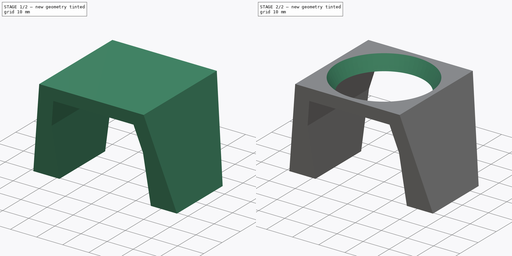
[diagram: build sequence overview — one tinted view per stage of 2, left to right]
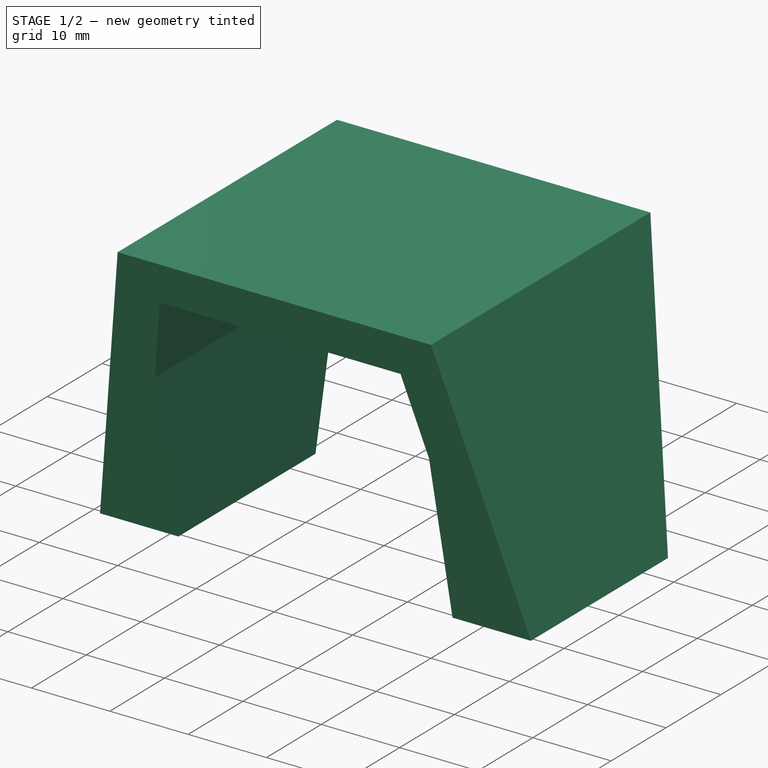
[diagram: stage 1 of 2 — iso view after this stage's code; geometry added in this stage tinted green]
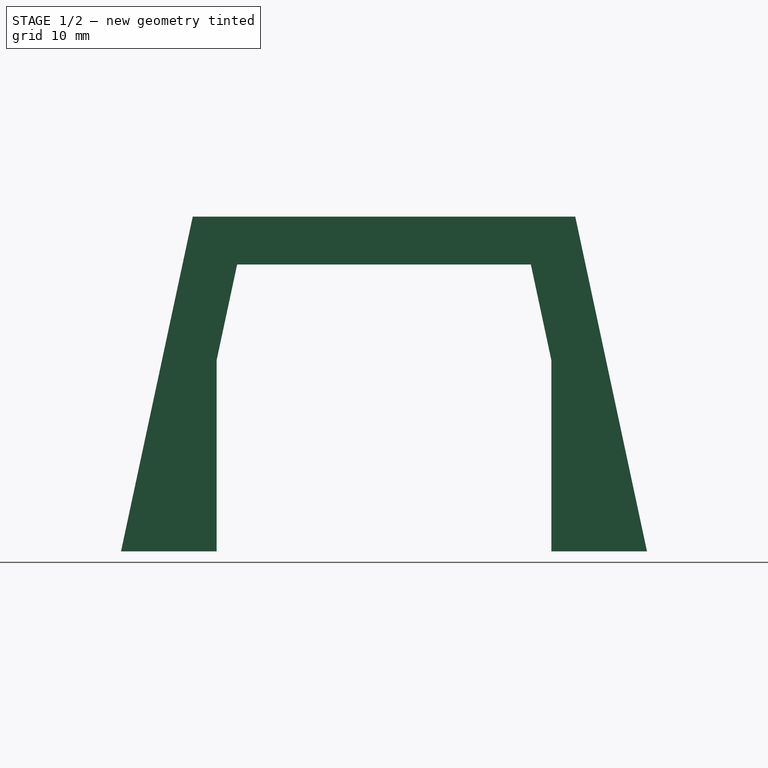
[diagram: stage 1 of 2 — front view after this stage's code; geometry added in this stage tinted green]
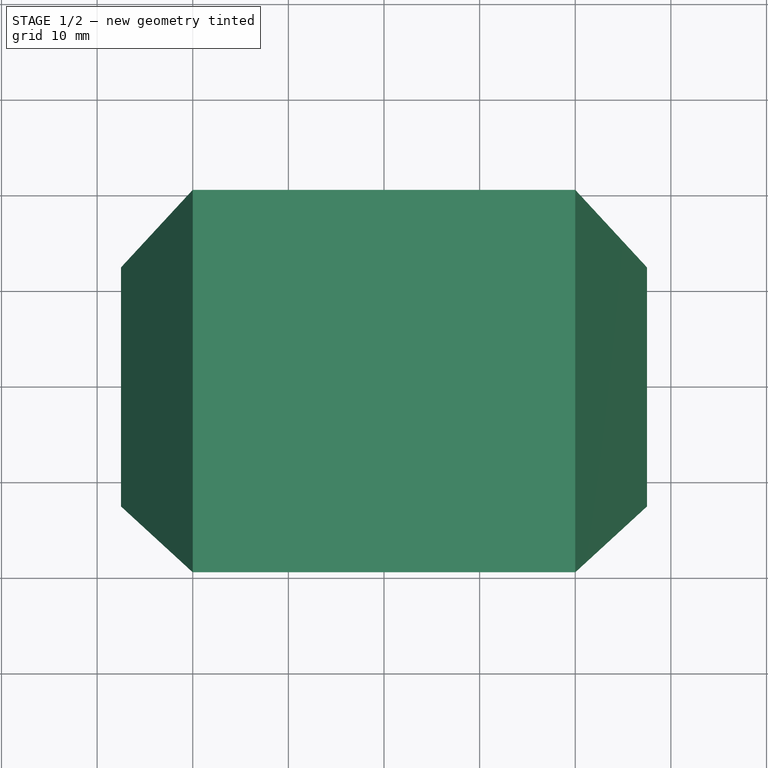
[diagram: stage 1 of 2 — top view after this stage's code; geometry added in this stage tinted green]
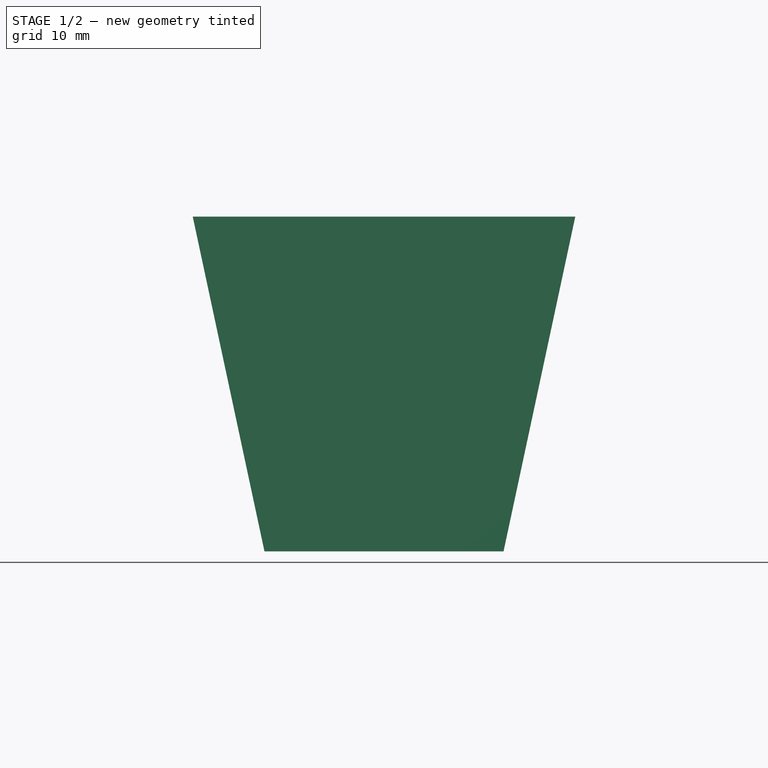
[diagram: stage 1 of 2 — right view after this stage's code; geometry added in this stage tinted green]
FCSTD DOCUMENT  (FreeCAD 0.19R24276 (Git))
Label: PX3_FAN_SUPPORT2
License: All rights reserved
LicenseURL: http://en.wikipedia.org/wiki/All_rights_reserved
objects: Sketcher::SketchObject×6, PartDesign::AdditiveLoft×1, PartDesign::Pocket×1, PartDesign::SubtractiveLoft×1, PartDesign::Body×1
note: 13 computed .brp shape members not serialized (recipe doc carries the construction recipe); baked Part::Feature solids carry a one-line shape summary decoded from their .brp

FEATURE [Sketcher::SketchObject] Sketch
  FullyConstrained = true
  MapMode = 5
  Support = -> [XY_Plane]
  sketch-geometry (8):
    g0: LineSegment StartX=-22.5 StartY=7.5 StartZ=0 EndX=22.5 EndY=7.5 EndZ=0
    g1: LineSegment StartX=22.5 StartY=7.5 StartZ=0 EndX=22.5 EndY=-7.5 EndZ=0
    g2: LineSegment StartX=22.5 StartY=-7.5 StartZ=0 EndX=-22.5 EndY=-7.5 EndZ=0
    g3: LineSegment StartX=-22.5 StartY=-7.5 StartZ=0 EndX=-22.5 EndY=7.5 EndZ=0
    g4: LineSegment StartX=-27.5 StartY=12.5 StartZ=0 EndX=27.5 EndY=12.5 EndZ=0
    g5: LineSegment StartX=27.5 StartY=12.5 StartZ=0 EndX=27.5 EndY=-12.5 EndZ=0
    g6: LineSegment StartX=27.5 StartY=-12.5 StartZ=0 EndX=-27.5 EndY=-12.5 EndZ=0
    g7: LineSegment StartX=-27.5 StartY=-12.5 StartZ=0 EndX=-27.5 EndY=12.5 EndZ=0
  constraints (22):
    c: Coincident(g0,g1)
    c: Coincident(g1,g2)
    c: Coincident(g2,g3)
    c: Coincident(g3,g0)
    c: Horizontal(g0)
    c: Horizontal(g2)
    c: Vertical(g1)
    c: Vertical(g3)
    c: Symmetric(g0,g1,g-1)
    c: DistanceX(g0,g0) = 45
    c: DistanceY(g1,g1) = 15
    c: Coincident(g4,g5)
    c: Coincident(g5,g6)
    c: Coincident(g6,g7)
    c: Coincident(g7,g4)
    c: Horizontal(g4)
    c: Horizontal(g6)
    c: Vertical(g5)
    c: Vertical(g7)
    c: Symmetric(g4,g5,g-1)
    c: DistanceX(g4,g4) = 55
    c: DistanceY(g5,g5) = 25
FEATURE [Sketcher::SketchObject] Sketch001
  AttachmentOffset = pos=(0,0,35) rot=(0,0,1;0rad)
  FullyConstrained = true
  MapMode = 5
  Placement = pos=(0,0,35) rot=(0,0,1;0rad)
  Support = -> [XY_Plane]
  sketch-geometry (4):
    g0: LineSegment StartX=-20 StartY=20 StartZ=0 EndX=20 EndY=20 EndZ=0
    g1: LineSegment StartX=20 StartY=20 StartZ=0 EndX=20 EndY=-20 EndZ=0
    g2: LineSegment StartX=20 StartY=-20 StartZ=0 EndX=-20 EndY=-20 EndZ=0
    g3: LineSegment StartX=-20 StartY=-20 StartZ=0 EndX=-20 EndY=20 EndZ=0
  constraints (11):
    c: Coincident(g0,g1)
    c: Coincident(g1,g2)
    c: Coincident(g2,g3)
    c: Coincident(g3,g0)
    c: Horizontal(g0)
    c: Horizontal(g2)
    c: Vertical(g1)
    c: Vertical(g3)
    c: Symmetric(g0,g1,g-1)
    c: Equal(g0,g1)
    c: DistanceX(g0,g0) = 40
FEATURE [PartDesign::AdditiveLoft] AdditiveLoft
  Closed = false
  Profile = -> Sketch001
  Ruled = false
  Sections = -> [Sketch]
FEATURE [Sketcher::SketchObject] Sketch002
  AttachmentOffset = pos=(0,0,30) rot=(0,0,1;0rad)
  ExternalGeometry = -> [AdditiveLoft]
  FullyConstrained = true
  MapMode = 5
  Placement = pos=(0,-30,6.7e-15) rot=(1,0,0;1.5708rad)
  Support = -> [XZ_Plane]
  sketch-geometry (7):
    g0: LineSegment StartX=-17.5 StartY=0 StartZ=0 EndX=17.5 EndY=0 EndZ=0
    g1: LineSegment StartX=17.5 StartY=0 StartZ=0 EndX=17.5 EndY=20 EndZ=0
    g2: LineSegment StartX=17.5 StartY=20 StartZ=0 EndX=15.3571 EndY=30 EndZ=0
    g3: LineSegment StartX=15.3571 StartY=30 StartZ=0 EndX=-15.3571 EndY=30 EndZ=0
    g4: LineSegment StartX=-15.3571 StartY=30 StartZ=0 EndX=-17.5 EndY=20 EndZ=0
    g5: LineSegment StartX=-17.5 StartY=20 StartZ=0 EndX=-17.5 EndY=0 EndZ=0
    g6: LineSegment StartX=-20 StartY=35 StartZ=0 EndX=-27.5 EndY=0 EndZ=0
  constraints (19):
    c: Horizontal(g0)
    c: Coincident(g0,g1)
    c: Vertical(g1)
    c: Coincident(g1,g2)
    c: Coincident(g2,g3)
    c: Horizontal(g3)
    c: Coincident(g3,g4)
    c: Coincident(g4,g5)
    c: Coincident(g5,g0)
    c: Vertical(g5)
    c: Equal(g4,g2)
    c: Equal(g1,g5)
    c: Symmetric(g0,g0,g-1)
    c: DistanceX(g-3,g0) = 10
    c: Coincident(g6,g-4)
    c: Coincident(g6,g-3)
    c: Parallel(g6,g4)
    c: DistanceY(g5,g5) = 20
    c: DistanceY(g3,g6) = 5
FEATURE [PartDesign::Pocket] Pocket
  BaseFeature = -> AdditiveLoft
  Length = 50
  Length2 = 100
  Profile = -> Sketch002
  Type = 0
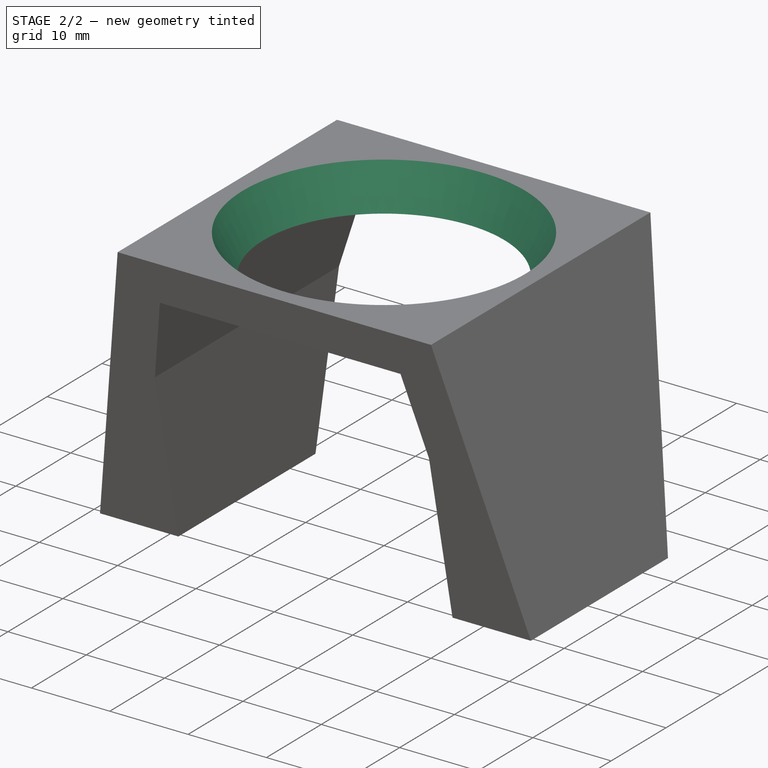
[diagram: stage 2 of 2 — iso view after this stage's code; geometry added in this stage tinted green]
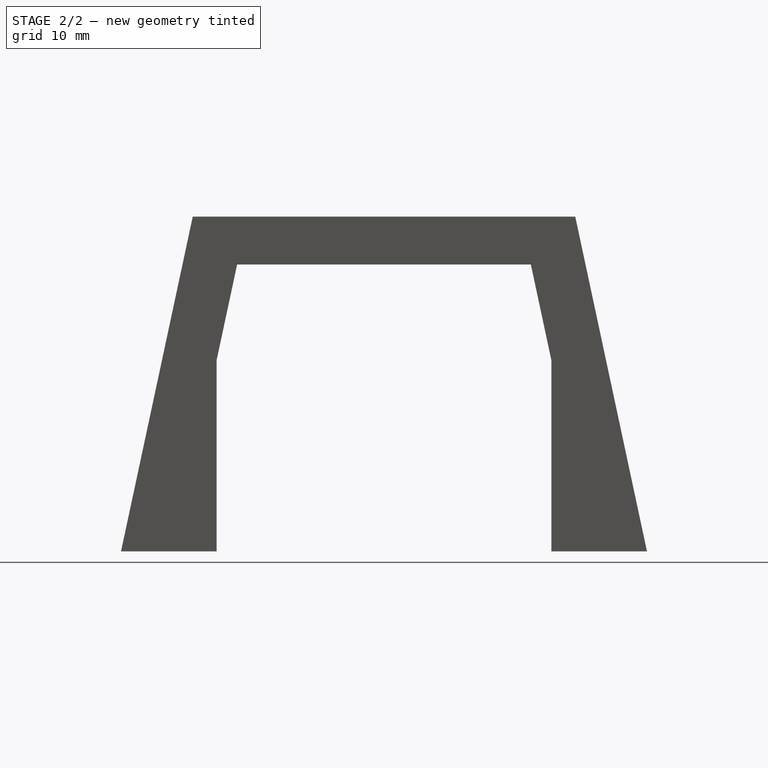
[diagram: stage 2 of 2 — front view after this stage's code; geometry added in this stage tinted green]
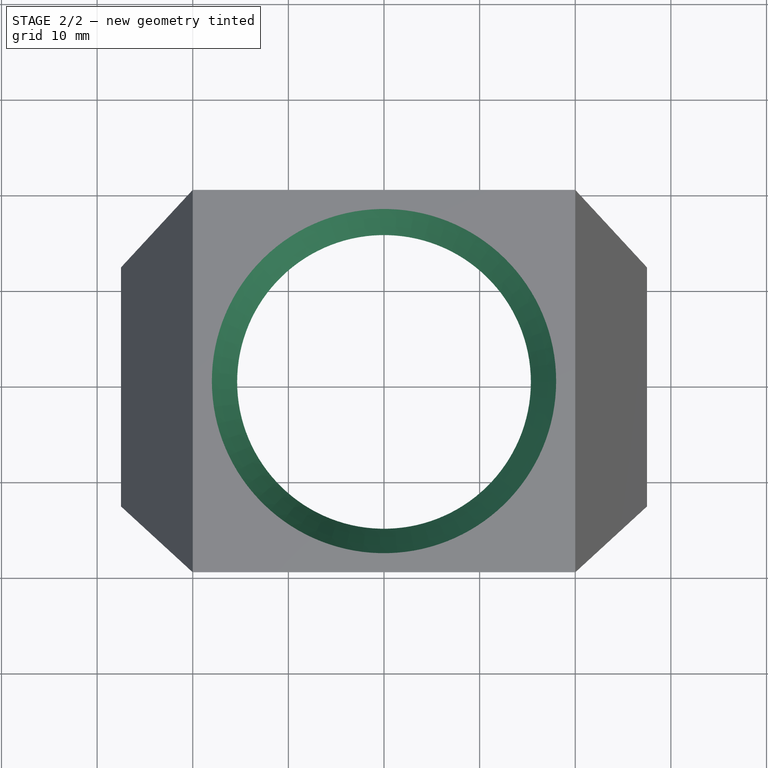
[diagram: stage 2 of 2 — top view after this stage's code; geometry added in this stage tinted green]
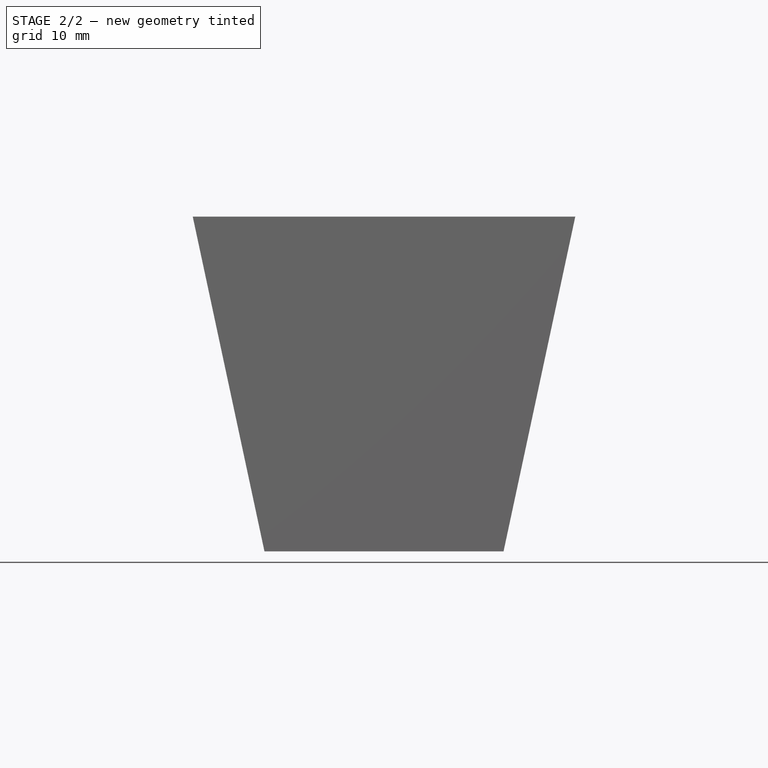
[diagram: stage 2 of 2 — right view after this stage's code; geometry added in this stage tinted green]
FEATURE [Sketcher::SketchObject] Sketch003
  FullyConstrained = true
  MapMode = 5
  Placement = pos=(0,0,35) rot=(0,0,1;0rad)
  Support = -> [Pocket]
  sketch-geometry (1):
    g0: Circle CenterX=0 CenterY=0 CenterZ=0 NormalX=0 NormalY=0 NormalZ=1 AngleXU=0 Radius=18
  constraints (2):
    c: Coincident(g0,g-1)
    c: Diameter(g0) = 36
FEATURE [Sketcher::SketchObject] Sketch004
  ExternalGeometry = -> [Pocket]
  FullyConstrained = true
  MapMode = 5
  Placement = pos=(0,6.7e-15,30) rot=(1,0,0;3.14159rad)
  Support = -> [Pocket]
  sketch-geometry (1):
    g0: Circle CenterX=0 CenterY=0 CenterZ=0 NormalX=0 NormalY=0 NormalZ=1 AngleXU=0 Radius=15.3571
  constraints (2):
    c: Coincident(g0,g-1)
    c: Tangent(g0,g-4)
FEATURE [PartDesign::SubtractiveLoft] SubtractiveLoft
  BaseFeature = -> Pocket
  Closed = false
  Profile = -> Sketch003
  Ruled = false
  Sections = -> [Sketch004]
FEATURE [Sketcher::SketchObject] Sketch005
  FullyConstrained = false
  MapMode = 5
  Placement = pos=(0,0,35) rot=(0,0,1;0rad)
  Support = -> [SubtractiveLoft]
  sketch-geometry (8):
    g0: LineSegment StartX=-16.2536 StartY=15.2408 StartZ=0 EndX=15.7464 EndY=15.2408 EndZ=0
    g1: LineSegment StartX=15.7464 StartY=15.2408 StartZ=0 EndX=15.7464 EndY=-16.7592 EndZ=0
    g2: LineSegment StartX=15.7464 StartY=-16.7592 StartZ=0 EndX=-16.2536 EndY=-16.7592 EndZ=0
    g3: LineSegment StartX=-16.2536 StartY=-16.7592 StartZ=0 EndX=-16.2536 EndY=15.2408 EndZ=0
    g4: Circle CenterX=-16.2536 CenterY=15.2408 CenterZ=0 NormalX=0 NormalY=0 NormalZ=1 AngleXU=0 Radius=1.65
    g5: Circle CenterX=-16.2536 CenterY=-16.7592 CenterZ=0 NormalX=0 NormalY=0 NormalZ=1 AngleXU=0 Radius=1.65
    g6: Circle CenterX=15.7464 CenterY=-16.7592 CenterZ=0 NormalX=0 NormalY=0 NormalZ=1 AngleXU=0 Radius=1.65
    g7: Circle CenterX=15.7464 CenterY=15.2408 CenterZ=0 NormalX=0 NormalY=0 NormalZ=1 AngleXU=0 Radius=1.65
  constraints (18):
    c: Coincident(g0,g1)
    c: Coincident(g1,g2)
    c: Coincident(g2,g3)
    c: Coincident(g3,g0)
    c: Horizontal(g0)
    c: Horizontal(g2)
    c: Vertical(g1)
    c: Vertical(g3)
    c: Equal(g0,g1)
    c: DistanceX(g0,g0) = 32
    c: Coincident(g4,g0)
    c: Coincident(g5,g2)
    c: Coincident(g6,g1)
    c: Coincident(g7,g0)
    c: Equal(g7,g4)
    c: Equal(g4,g5)
    c: Equal(g5,g6)
    c: Diameter(g7) = 3.3
FEATURE [PartDesign::Body] Body
  Group = -> [Sketch,Sketch001,AdditiveLoft,Sketch002,Pocket,Sketch003,Sketch004,SubtractiveLoft,Sketch005]
  Origin = -> Origin
  Tip = -> SubtractiveLoft
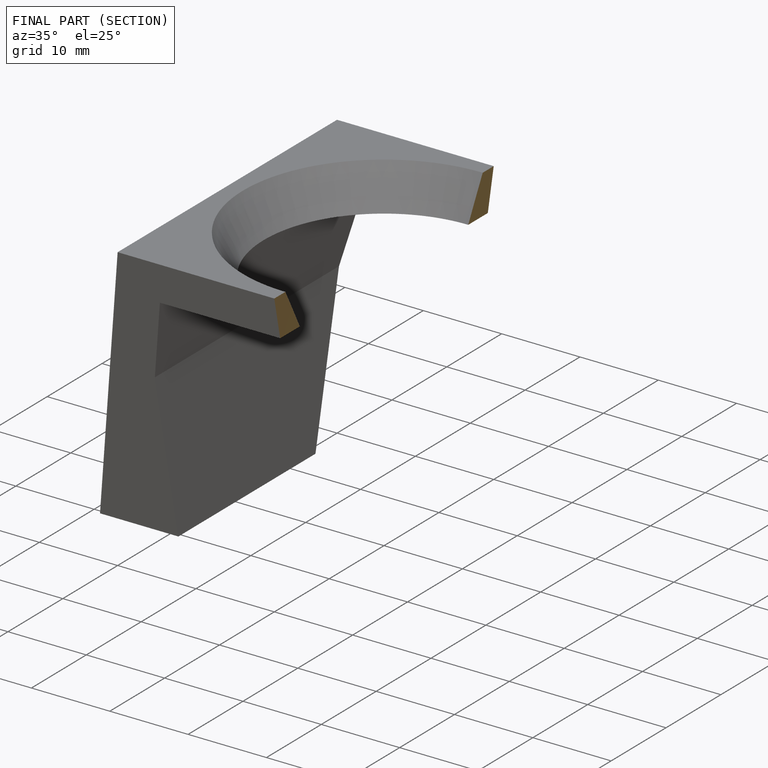
[diagram: finished part — half-section view (interior)]
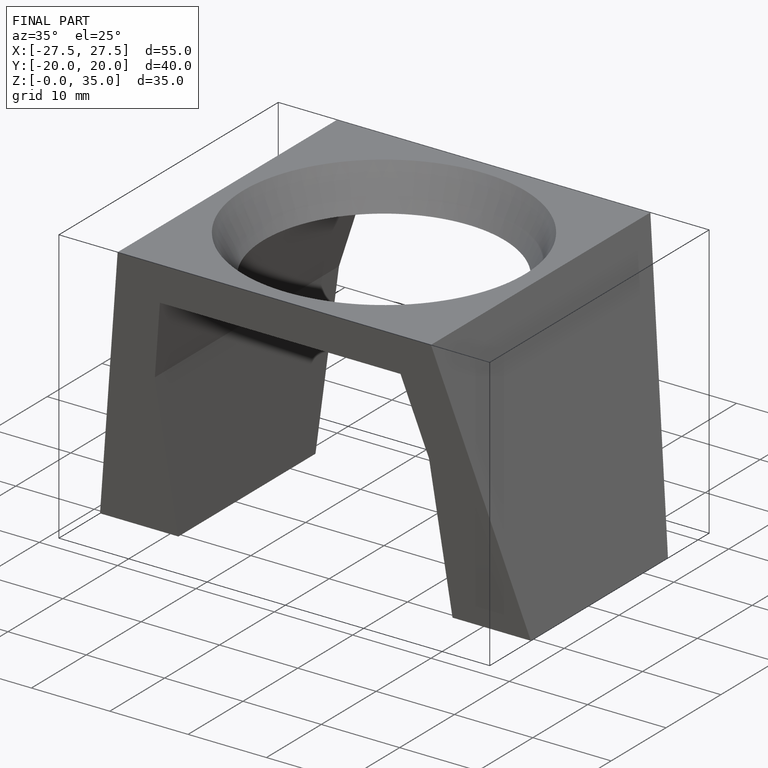
[diagram: finished part — iso view with bounding-box wireframe]
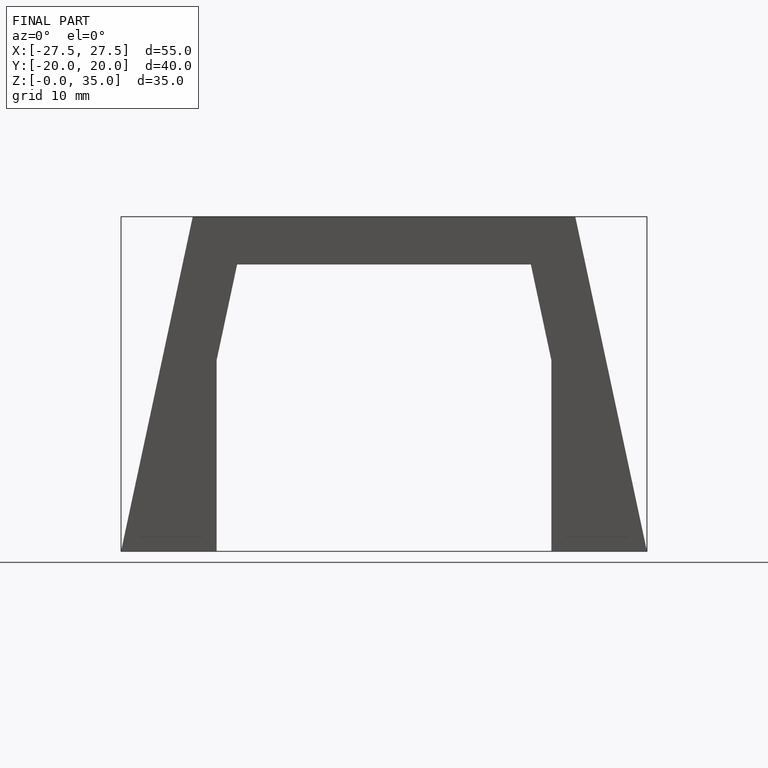
[diagram: finished part — front view with bounding-box wireframe]
